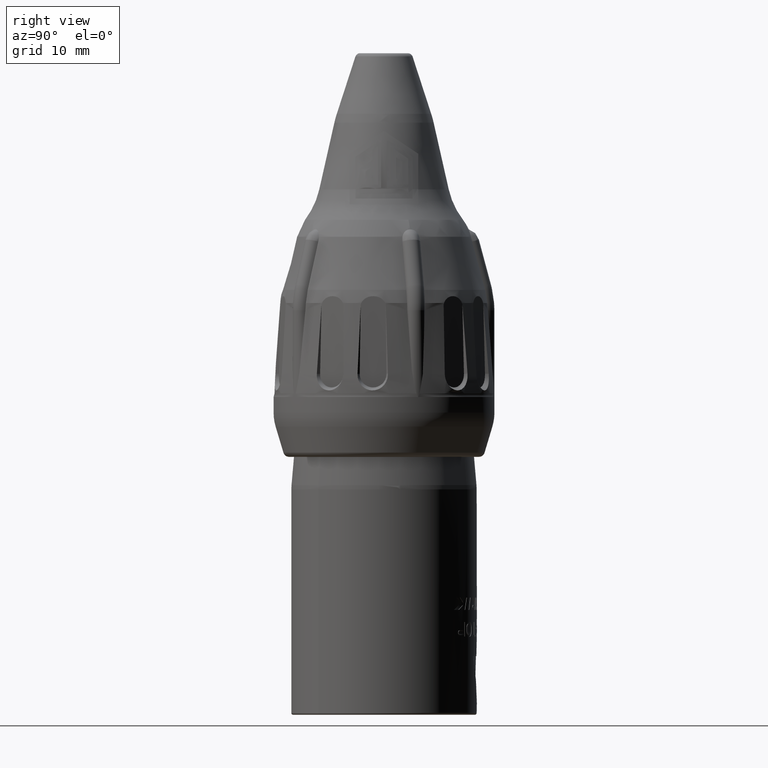
[diagram: clean part render]
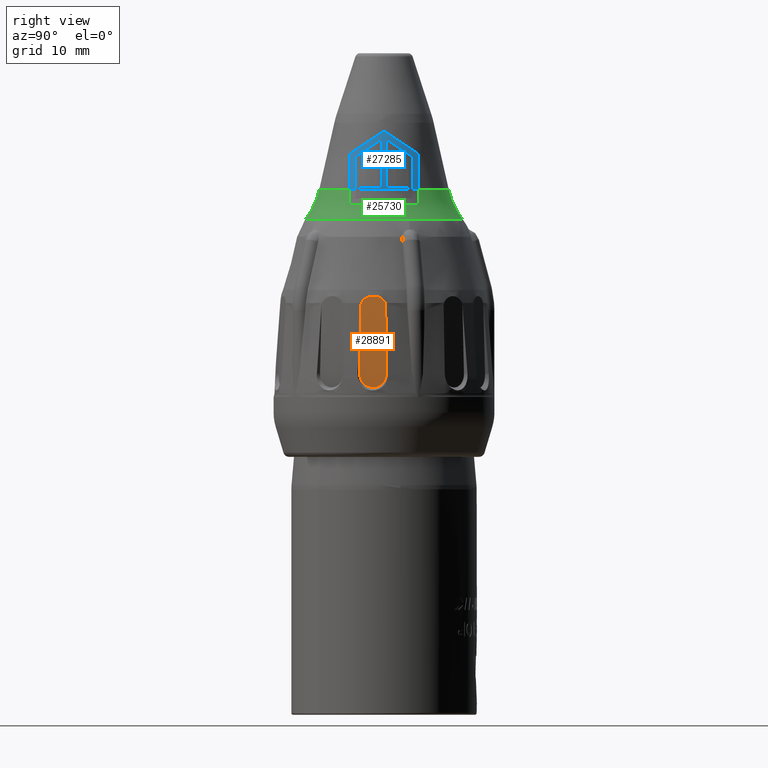
[diagram: same view with three faces highlighted in distinct colors, each labeled with its STEP entity id]
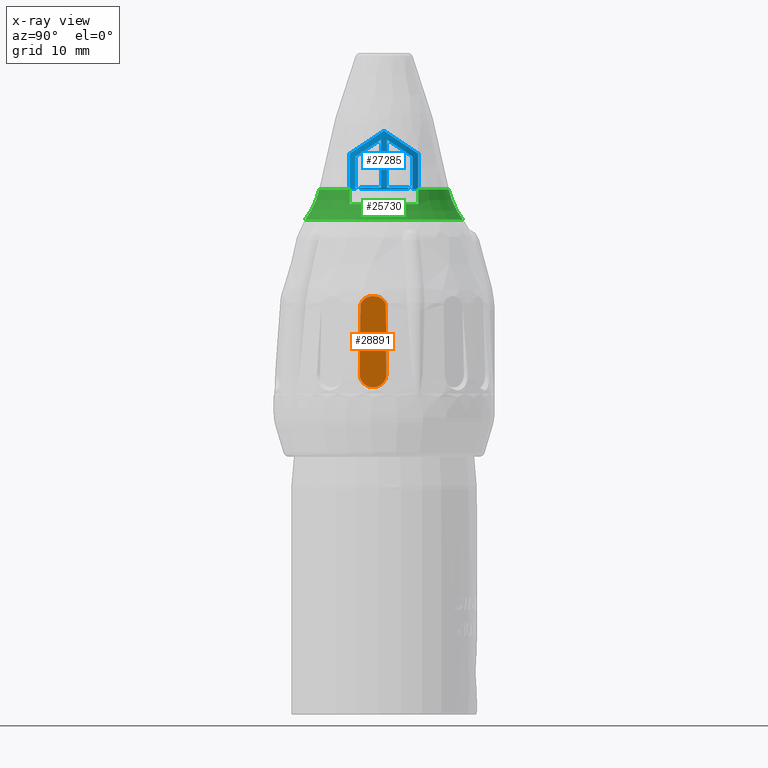
[diagram: x-ray of the same camera — body ghosted, the three highlighted faces saturated]
A machine part, right view with three faces highlighted in distinct colors.
The next image is the same camera in x-ray (body ghosted, the three faces saturated) — at least one of them is partly hidden behind the body in this view.
Their STEP definitions:

[orange] entity #28891 — the highlighted planar face has unit normal (-0.9943, 0.1045, -0.0209).
#6809=CARTESIAN_POINT('',(1.035868448203E1,-2.384952251077E0,1.299690952390E1));
#6810=CARTESIAN_POINT('',(1.035923498853E1,-2.374991287653E0,1.302047915723E1));
#6811=CARTESIAN_POINT('',(1.036035037825E1,-2.355010892870E0,1.306722760874E1));
#6812=CARTESIAN_POINT('',(1.036149541703E1,-2.334905694710E0,1.311319116853E1));
#6813=CARTESIAN_POINT('',(1.036207559087E1,-2.324819783161E0,1.313597576435E1));
#6847=CARTESIAN_POINT('',(1.061899658980E1,1.196202365570E-1,1.313597576435E1));
#6848=CARTESIAN_POINT('',(1.062052615081E1,1.296068792090E-1,1.311319001051E1));
#6849=CARTESIAN_POINT('',(1.062358631541E1,1.495112848124E-1,1.306722528360E1));
#6850=CARTESIAN_POINT('',(1.062664937961E1,1.692864556409E-1,1.302047799067E1));
#6851=CARTESIAN_POINT('',(1.062818182790E1,1.791437169481E-1,1.299690952390E1));
#9455=DIRECTION('',(2.208994578655E-2,9.835077521082E-3,-9.997076100267E-1));
#9456=VECTOR('',#9455,7.104095729760E0);
#9457=CARTESIAN_POINT('',(1.062818182790E1,1.791437169481E-1,1.299690952390E1));
#9458=LINE('',#9457,#9456);
#9459=CARTESIAN_POINT('',(1.078511091743E1,2.490130491675E-1,5.894890960499E0));
#9460=CARTESIAN_POINT('',(1.078871338632E1,2.506169716532E-1,5.731856809378E0));
#9461=CARTESIAN_POINT('',(1.079027744830E1,1.946896659617E-1,5.378513405057E0));
#9462=CARTESIAN_POINT('',(1.076793681089E1,-1.172945027608E-1,
4.882358072111E0));
#9463=CARTESIAN_POINT('',(1.072266964763E1,-6.120777664156E-1,
4.562515385819E0));
#9464=CARTESIAN_POINT('',(1.067099861348E1,-1.121567148791E0,4.473330007022E0));
#9465=CARTESIAN_POINT('',(1.061561171262E1,-1.630665977838E0,4.562515385819E0));
#9466=CARTESIAN_POINT('',(1.055701845482E1,-2.124048612517E0,4.882358072111E0));
#9467=CARTESIAN_POINT('',(1.051400573967E1,-2.433860058317E0,5.378513405057E0));
#9468=CARTESIAN_POINT('',(1.050084791551E1,-2.488240031424E0,5.731856809378E0));
#9469=CARTESIAN_POINT('',(1.049765764345E1,-2.485922163095E0,5.894890960499E0));
#9471=DIRECTION('',(-1.956239987472E-2,1.421291545883E-2,9.997076100267E-1));
#9472=VECTOR('',#9471,7.104095729760E0);
#9473=CARTESIAN_POINT('',(1.049765764345E1,-2.485922163095E0,5.894890960499E0));
#9474=LINE('',#9473,#9472);
#9475=CARTESIAN_POINT('',(1.061899658980E1,1.196202365570E-1,1.313597576435E1));
#9476=CARTESIAN_POINT('',(1.061274101926E1,7.877704872381E-2,1.322916452224E1));
#9477=CARTESIAN_POINT('',(1.059748854314E1,-3.136956411892E-2,
1.340367461223E1));
#9478=CARTESIAN_POINT('',(1.056424240242E1,-3.009877904266E-1,
1.363670238606E1));
#9479=CARTESIAN_POINT('',(1.052255458185E1,-6.649155918288E-1,
1.379990638837E1));
#9480=CARTESIAN_POINT('',(1.047707024134E1,-1.085406882412E0,1.386110194187E1));
#9481=CARTESIAN_POINT('',(1.043436560514E1,-1.502205851173E0,1.380874794202E1));
#9482=CARTESIAN_POINT('',(1.039836174038E1,-1.875432462117E0,1.365568687654E1));
#9483=CARTESIAN_POINT('',(1.037203046054E1,-2.176660416238E0,1.340267416419E1));
#9484=CARTESIAN_POINT('',(1.036440680094E1,-2.284293346470E0,1.322752708081E1));
#9485=CARTESIAN_POINT('',(1.036207559087E1,-2.324819783161E0,1.313597576435E1));
#13195=VERTEX_POINT('',#9459);
#13196=VERTEX_POINT('',#9469);
#13197=CARTESIAN_POINT('',(1.035868448203E1,-2.384952251077E0,
1.299690952390E1));
#13198=VERTEX_POINT('',#13197);
#13199=CARTESIAN_POINT('',(1.062818182790E1,1.791437169481E-1,
1.299690952390E1));
#13200=VERTEX_POINT('',#13199);
#13231=VERTEX_POINT('',#6813);
#13232=VERTEX_POINT('',#6847);
#28875=CARTESIAN_POINT('',(1.038826367641E1,-3.526736234580E0,
5.894890960499E0));
#28876=DIRECTION('',(-9.943037802820E-1,1.045055384483E-1,-2.094241988336E-2));
#28877=DIRECTION('',(-1.045284632677E-1,-9.945218953683E-1,0.E0));
#28878=AXIS2_PLACEMENT_3D('',#28875,#28876,#28877);
#28879=PLANE('',#28878);
#28880=ORIENTED_EDGE('',*,*,#24702,.T.);
#28882=ORIENTED_EDGE('',*,*,#28881,.T.);
#28884=ORIENTED_EDGE('',*,*,#28883,.T.);
#28886=ORIENTED_EDGE('',*,*,#28885,.T.);
#28887=ORIENTED_EDGE('',*,*,#24694,.T.);
#28888=ORIENTED_EDGE('',*,*,#25208,.F.);
#28889=EDGE_LOOP('',(#28880,#28882,#28884,#28886,#28887,#28888));
#28890=FACE_OUTER_BOUND('',#28889,.F.);
#6814=B_SPLINE_CURVE_WITH_KNOTS('',3,(#6809,#6810,#6811,#6812,#6813),
.UNSPECIFIED.,.F.,.F.,(4,1,4),(0.E0,5.E-1,1.E0),.UNSPECIFIED.);
#6852=B_SPLINE_CURVE_WITH_KNOTS('',3,(#6847,#6848,#6849,#6850,#6851),
.UNSPECIFIED.,.F.,.F.,(4,1,4),(0.E0,5.E-1,1.E0),.UNSPECIFIED.);
#9470=B_SPLINE_CURVE_WITH_KNOTS('',3,(#9459,#9460,#9461,#9462,#9463,#9464,#9465,
#9466,#9467,#9468,#9469),.UNSPECIFIED.,.F.,.F.,(4,1,1,1,1,1,1,1,4),(0.E0,
1.25E-1,2.5E-1,3.75E-1,5.E-1,6.25E-1,7.5E-1,8.75E-1,1.E0),.UNSPECIFIED.);
#9486=B_SPLINE_CURVE_WITH_KNOTS('',3,(#9475,#9476,#9477,#9478,#9479,#9480,#9481,
#9482,#9483,#9484,#9485),.UNSPECIFIED.,.F.,.F.,(4,1,1,1,1,1,1,1,4),(0.E0,
1.25E-1,2.5E-1,3.75E-1,5.E-1,6.25E-1,7.5E-1,8.75E-1,1.E0),.UNSPECIFIED.);
#24694=EDGE_CURVE('',#13198,#13231,#6814,.T.);
#24702=EDGE_CURVE('',#13232,#13200,#6852,.T.);
#25208=EDGE_CURVE('',#13232,#13231,#9486,.T.);
#28881=EDGE_CURVE('',#13200,#13195,#9458,.T.);
#28883=EDGE_CURVE('',#13195,#13196,#9470,.T.);
#28885=EDGE_CURVE('',#13196,#13198,#9474,.T.);
#28891=ADVANCED_FACE('',(#28890),#28879,.F.);

[blue] entity #27285 — the highlighted conical surface has half-angle 12.741 deg.
#8777=CARTESIAN_POINT('',(4.805131249588E0,-3.511568690406E0,2.841304441196E1));
#8778=CARTESIAN_POINT('',(4.913172701029E0,-3.511568690406E0,2.802724766920E1));
#8779=CARTESIAN_POINT('',(5.129734373924E0,-3.511568690406E0,2.724490386660E1));
#8780=CARTESIAN_POINT('',(5.456768963148E0,-3.511568690406E0,2.603932182085E1));
#8781=CARTESIAN_POINT('',(5.676643843764E0,-3.511568690406E0,2.521438610970E1));
#8782=CARTESIAN_POINT('',(5.787129197009E0,-3.511568690406E0,2.479663213144E1));
#8784=CARTESIAN_POINT('',(4.805131249588E0,-3.511568690406E0,2.841304441196E1));
#8785=CARTESIAN_POINT('',(5.109630707354E0,-2.951928430523E0,2.878613517358E1));
#8786=CARTESIAN_POINT('',(5.493581783731E0,-1.804295592333E0,2.955121810338E1));
#8787=CARTESIAN_POINT('',(5.514118261425E0,-6.108785046254E-1,
3.034682364161E1));
#8788=CARTESIAN_POINT('',(5.422384295150E0,-1.319364158854E-3,
3.075319341211E1));
#8790=CARTESIAN_POINT('',(5.422384295150E0,-1.319364158854E-3,
3.075319341211E1));
#8791=CARTESIAN_POINT('',(5.514402588634E0,6.081583112293E-1,3.034687798136E1));
#8792=CARTESIAN_POINT('',(5.494459052690E0,1.801496110779E0,2.955132536042E1));
#8793=CARTESIAN_POINT('',(5.111175981595E0,2.949202654588E0,2.878619335058E1));
#8794=CARTESIAN_POINT('',(4.807058319795E0,3.508930222062E0,2.841304441196E1));
#8796=CARTESIAN_POINT('',(5.788729368956E0,3.508930222062E0,2.479663213144E1));
#8797=CARTESIAN_POINT('',(5.678359997942E0,3.508930222062E0,2.521406296152E1));
#8798=CARTESIAN_POINT('',(5.458665830434E0,3.508930222062E0,2.603856846527E1));
#8799=CARTESIAN_POINT('',(5.131739800535E0,3.508930222062E0,2.724416560202E1));
#8800=CARTESIAN_POINT('',(4.915144919283E0,3.508930222062E0,2.802693166736E1));
#8801=CARTESIAN_POINT('',(4.807058319795E0,3.508930222062E0,2.841304441196E1));
#8803=CARTESIAN_POINT('',(0.E0,0.E0,2.479663213144E1));
#8804=DIRECTION('',(0.E0,0.E0,1.E0));
#8805=DIRECTION('',(9.015598071135E-1,4.326544974890E-1,0.E0));
#8806=AXIS2_PLACEMENT_3D('',#8803,#8804,#8805);
#8808=CARTESIAN_POINT('',(6.102832677619E0,2.928721960054E0,2.479663213144E1));
#8809=CARTESIAN_POINT('',(6.007989333742E0,2.928721960054E0,2.517480557503E1));
#8810=CARTESIAN_POINT('',(5.819285822878E0,2.928721960054E0,2.592393541035E1));
#8811=CARTESIAN_POINT('',(5.538959799344E0,2.928721960054E0,2.702597467981E1));
#8812=CARTESIAN_POINT('',(5.353758041709E0,2.928721960054E0,2.774609430111E1));
#8813=CARTESIAN_POINT('',(5.261528227681E0,2.928721960054E0,2.810250639267E1));
#8815=CARTESIAN_POINT('',(5.616361321017E0,2.887847668454E-1,2.986247314279E1));
#8816=CARTESIAN_POINT('',(5.705894285626E0,1.188449643800E0,2.926269362009E1));
#8817=CARTESIAN_POINT('',(5.591825228205E0,2.068827390851E0,2.867577224698E1));
#8818=CARTESIAN_POINT('',(5.261528227681E0,2.928721960054E0,2.810250639267E1));
#8820=CARTESIAN_POINT('',(6.731467862481E0,2.887847668454E-1,2.493609748476E1));
#8821=CARTESIAN_POINT('',(6.606039488454E0,2.887847668454E-1,2.549032251438E1));
#8822=CARTESIAN_POINT('',(6.356202630809E0,2.887847668454E-1,2.659420926840E1));
#8823=CARTESIAN_POINT('',(5.984448812536E0,2.887847668454E-1,2.823657949439E1));
#8824=CARTESIAN_POINT('',(5.738713828343E0,2.887847668454E-1,2.932205595514E1));
#8825=CARTESIAN_POINT('',(5.616361321017E0,2.887847668454E-1,2.986247314279E1));
#8827=CARTESIAN_POINT('',(0.E0,0.E0,2.493609748476E1));
#8828=DIRECTION('',(0.E0,0.E0,1.E0));
#8829=DIRECTION('',(9.990810327426E-1,4.286128805699E-2,0.E0));
#8830=AXIS2_PLACEMENT_3D('',#8827,#8828,#8829);
#8832=CARTESIAN_POINT('',(6.297814139377E0,2.478071061283E0,2.480274265861E1));
#8833=CARTESIAN_POINT('',(6.294210357170E0,2.478071061283E0,2.481757431396E1));
#8834=CARTESIAN_POINT('',(6.287001590851E0,2.478071497707E0,2.484722736607E1));
#8835=CARTESIAN_POINT('',(6.276198106977E0,2.478071319170E0,2.489167939895E1));
#8836=CARTESIAN_POINT('',(6.268997799028E0,2.478071358845E0,2.492129463772E1));
#8837=CARTESIAN_POINT('',(6.265398516109E0,2.478071358845E0,2.493609748476E1));
#8839=CARTESIAN_POINT('',(6.297813045079E0,-2.478071656454E0,2.480274242046E1));
#8840=CARTESIAN_POINT('',(6.504252866152E0,-1.953422018180E0,2.480274242046E1));
#8841=CARTESIAN_POINT('',(6.787133413737E0,-8.527449324778E-1,
2.479459540019E1));
#8842=CARTESIAN_POINT('',(6.787133087292E0,8.527438774391E-1,2.479459525730E1));
#8843=CARTESIAN_POINT('',(6.504253886114E0,1.953421394757E0,2.480274265861E1));
#8844=CARTESIAN_POINT('',(6.297814139377E0,2.478071061283E0,2.480274265861E1));
#8846=CARTESIAN_POINT('',(6.265398516109E0,-2.478071358845E0,2.493609748476E1));
#8847=CARTESIAN_POINT('',(6.268997795767E0,-2.478071358845E0,2.492129465113E1));
#8848=CARTESIAN_POINT('',(6.276197953825E0,-2.478071398526E0,2.489167939689E1));
#8849=CARTESIAN_POINT('',(6.287002088274E0,-2.478071219960E0,2.484722753211E1));
#8850=CARTESIAN_POINT('',(6.294209260877E0,-2.478071656454E0,2.481757408319E1));
#8851=CARTESIAN_POINT('',(6.297813045079E0,-2.478071656454E0,2.480274242046E1));
#8853=CARTESIAN_POINT('',(0.E0,0.E0,2.493609748476E1));
#8854=DIRECTION('',(0.E0,0.E0,1.E0));
#8855=DIRECTION('',(9.299072576587E-1,-3.677940893402E-1,0.E0));
#8856=AXIS2_PLACEMENT_3D('',#8853,#8854,#8855);
#8858=CARTESIAN_POINT('',(5.616225020087E0,-2.914234951629E-1,
2.986247314279E1));
#8859=CARTESIAN_POINT('',(5.738525717357E0,-2.914234951629E-1,
2.932229790388E1));
#8860=CARTESIAN_POINT('',(5.984193272210E0,-2.914234951629E-1,
2.823714397777E1));
#8861=CARTESIAN_POINT('',(6.355955652891E0,-2.914234951629E-1,
2.659476896483E1));
#8862=CARTESIAN_POINT('',(6.605869367373E0,-2.914234951629E-1,
2.549056235763E1));
#8863=CARTESIAN_POINT('',(6.731354141007E0,-2.914234951629E-1,
2.493609748476E1));
#8865=CARTESIAN_POINT('',(5.260058566657E0,-2.931360688371E0,2.810250639267E1));
#8866=CARTESIAN_POINT('',(5.590848372232E0,-2.071546305159E0,2.867571878940E1));
#8867=CARTESIAN_POINT('',(5.705345094591E0,-1.191165461312E0,2.926264222704E1));
#8868=CARTESIAN_POINT('',(5.616225020087E0,-2.914234951629E-1,
2.986247314279E1));
#8870=CARTESIAN_POINT('',(5.260058566657E0,-2.931360688371E0,2.810250639267E1));
#8871=CARTESIAN_POINT('',(5.352260566127E0,-2.931360688371E0,2.774630131120E1));
#8872=CARTESIAN_POINT('',(5.537441138752E0,-2.931360688371E0,2.702645800856E1));
#8873=CARTESIAN_POINT('',(5.817834196220E0,-2.931360688371E0,2.592442557034E1));
#8874=CARTESIAN_POINT('',(6.006649903140E0,-2.931360688371E0,2.517501574494E1));
#8875=CARTESIAN_POINT('',(6.101565661778E0,-2.931360688371E0,2.479663213144E1));
#8877=CARTESIAN_POINT('',(0.E0,0.E0,2.479663213144E1));
#8878=DIRECTION('',(0.E0,0.E0,1.E0));
#8879=DIRECTION('',(8.549215353274E-1,-5.187573309684E-1,0.E0));
#8880=AXIS2_PLACEMENT_3D('',#8877,#8878,#8879);
#13347=VERTEX_POINT('',#8777);
#13348=VERTEX_POINT('',#8782);
#13350=VERTEX_POINT('',#8788);
#13352=VERTEX_POINT('',#8794);
#13354=VERTEX_POINT('',#8796);
#13357=VERTEX_POINT('',#8870);
#13358=VERTEX_POINT('',#8875);
#13361=VERTEX_POINT('',#8808);
#13362=VERTEX_POINT('',#8813);
#13364=VERTEX_POINT('',#8815);
#13366=VERTEX_POINT('',#8820);
#13369=CARTESIAN_POINT('',(6.265398516109E0,2.478071358845E0,2.493609748476E1));
#13370=VERTEX_POINT('',#13369);
#13372=VERTEX_POINT('',#8832);
#13375=VERTEX_POINT('',#8846);
#13376=VERTEX_POINT('',#8851);
#13379=CARTESIAN_POINT('',(6.731354141007E0,-2.914234951629E-1,
2.493609748476E1));
#13380=VERTEX_POINT('',#13379);
#13382=VERTEX_POINT('',#8858);
#27246=CARTESIAN_POINT('',(0.E0,0.E0,2.777441632349E1));
#27247=DIRECTION('',(0.E0,0.E0,-1.E0));
#27248=DIRECTION('',(0.E0,1.E0,0.E0));
#27249=AXIS2_PLACEMENT_3D('',#27246,#27247,#27248);
#27250=CONICAL_SURFACE('',#27249,6.095901167121E0,1.274063614592E1);
#27252=ORIENTED_EDGE('',*,*,#27251,.F.);
#27254=ORIENTED_EDGE('',*,*,#27253,.T.);
#27256=ORIENTED_EDGE('',*,*,#27255,.T.);
#27258=ORIENTED_EDGE('',*,*,#27257,.F.);
#27260=ORIENTED_EDGE('',*,*,#27259,.F.);
#27261=ORIENTED_EDGE('',*,*,#27194,.T.);
#27263=ORIENTED_EDGE('',*,*,#27262,.F.);
#27265=ORIENTED_EDGE('',*,*,#27264,.F.);
#27267=ORIENTED_EDGE('',*,*,#27266,.T.);
#27269=ORIENTED_EDGE('',*,*,#27268,.F.);
#27271=ORIENTED_EDGE('',*,*,#27270,.F.);
#27273=ORIENTED_EDGE('',*,*,#27272,.F.);
#27275=ORIENTED_EDGE('',*,*,#27274,.T.);
#27277=ORIENTED_EDGE('',*,*,#27276,.F.);
#27279=ORIENTED_EDGE('',*,*,#27278,.F.);
#27280=ORIENTED_EDGE('',*,*,#27154,.T.);
#27282=ORIENTED_EDGE('',*,*,#27281,.F.);
#27283=EDGE_LOOP('',(#27252,#27254,#27256,#27258,#27260,#27261,#27263,#27265,
#27267,#27269,#27271,#27273,#27275,#27277,#27279,#27280,#27282));
#27284=FACE_OUTER_BOUND('',#27283,.F.);
#8783=B_SPLINE_CURVE_WITH_KNOTS('',3,(#8777,#8778,#8779,#8780,#8781,#8782),
.UNSPECIFIED.,.F.,.F.,(4,1,1,4),(0.E0,3.333333333333E-1,6.666666666667E-1,1.E0),
.UNSPECIFIED.);
#8789=B_SPLINE_CURVE_WITH_KNOTS('',3,(#8784,#8785,#8786,#8787,#8788),
.UNSPECIFIED.,.F.,.F.,(4,1,4),(0.E0,5.E-1,1.E0),.UNSPECIFIED.);
#8795=B_SPLINE_CURVE_WITH_KNOTS('',3,(#8790,#8791,#8792,#8793,#8794),
.UNSPECIFIED.,.F.,.F.,(4,1,4),(0.E0,5.E-1,1.E0),.UNSPECIFIED.);
#8802=B_SPLINE_CURVE_WITH_KNOTS('',3,(#8796,#8797,#8798,#8799,#8800,#8801),
.UNSPECIFIED.,.F.,.F.,(4,1,1,4),(0.E0,3.333333333333E-1,6.666666666667E-1,1.E0),
.UNSPECIFIED.);
#8807=CIRCLE('',#8806,6.769193379592E0);
#8814=B_SPLINE_CURVE_WITH_KNOTS('',3,(#8808,#8809,#8810,#8811,#8812,#8813),
.UNSPECIFIED.,.F.,.F.,(4,1,1,4),(0.E0,3.333333333333E-1,6.666666666667E-1,1.E0),
.UNSPECIFIED.);
#8819=B_SPLINE_CURVE_WITH_KNOTS('',3,(#8815,#8816,#8817,#8818),.UNSPECIFIED.,
.F.,.F.,(4,4),(0.E0,1.E0),.UNSPECIFIED.);
#8826=B_SPLINE_CURVE_WITH_KNOTS('',3,(#8820,#8821,#8822,#8823,#8824,#8825),
.UNSPECIFIED.,.F.,.F.,(4,1,1,4),(0.E0,3.333333333333E-1,6.666666666667E-1,1.E0),
.UNSPECIFIED.);
#8831=CIRCLE('',#8830,6.737659551E0);
#8838=B_SPLINE_CURVE_WITH_KNOTS('',3,(#8832,#8833,#8834,#8835,#8836,#8837),
.UNSPECIFIED.,.F.,.F.,(4,1,1,4),(0.E0,3.333333333333E-1,6.666666666667E-1,1.E0),
.UNSPECIFIED.);
#8845=B_SPLINE_CURVE_WITH_KNOTS('',3,(#8839,#8840,#8841,#8842,#8843,#8844),
.UNSPECIFIED.,.F.,.F.,(4,1,1,4),(0.E0,3.333333333333E-1,6.666666666667E-1,1.E0),
.UNSPECIFIED.);
#8852=B_SPLINE_CURVE_WITH_KNOTS('',3,(#8846,#8847,#8848,#8849,#8850,#8851),
.UNSPECIFIED.,.F.,.F.,(4,1,1,4),(0.E0,3.333333333333E-1,6.666666666667E-1,1.E0),
.UNSPECIFIED.);
#8857=CIRCLE('',#8856,6.737659551E0);
#8864=B_SPLINE_CURVE_WITH_KNOTS('',3,(#8858,#8859,#8860,#8861,#8862,#8863),
.UNSPECIFIED.,.F.,.F.,(4,1,1,4),(0.E0,3.333333333333E-1,6.666666666667E-1,1.E0),
.UNSPECIFIED.);
#8869=B_SPLINE_CURVE_WITH_KNOTS('',3,(#8865,#8866,#8867,#8868),.UNSPECIFIED.,
.F.,.F.,(4,4),(0.E0,1.E0),.UNSPECIFIED.);
#8876=B_SPLINE_CURVE_WITH_KNOTS('',3,(#8870,#8871,#8872,#8873,#8874,#8875),
.UNSPECIFIED.,.F.,.F.,(4,1,1,4),(0.E0,3.333333333333E-1,6.666666666667E-1,1.E0),
.UNSPECIFIED.);
#8881=CIRCLE('',#8880,6.769193379592E0);
#27154=EDGE_CURVE('',#13357,#13358,#8876,.T.);
#27194=EDGE_CURVE('',#13361,#13362,#8814,.T.);
#27251=EDGE_CURVE('',#13347,#13348,#8783,.T.);
#27253=EDGE_CURVE('',#13347,#13350,#8789,.T.);
#27255=EDGE_CURVE('',#13350,#13352,#8795,.T.);
#27257=EDGE_CURVE('',#13354,#13352,#8802,.T.);
#27259=EDGE_CURVE('',#13361,#13354,#8807,.T.);
#27262=EDGE_CURVE('',#13364,#13362,#8819,.T.);
#27264=EDGE_CURVE('',#13366,#13364,#8826,.T.);
#27266=EDGE_CURVE('',#13366,#13370,#8831,.T.);
#27268=EDGE_CURVE('',#13372,#13370,#8838,.T.);
#27270=EDGE_CURVE('',#13376,#13372,#8845,.T.);
#27272=EDGE_CURVE('',#13375,#13376,#8852,.T.);
#27274=EDGE_CURVE('',#13375,#13380,#8857,.T.);
#27276=EDGE_CURVE('',#13382,#13380,#8864,.T.);
#27278=EDGE_CURVE('',#13357,#13382,#8869,.T.);
#27281=EDGE_CURVE('',#13348,#13358,#8881,.T.);
#27285=ADVANCED_FACE('',(#27284),#27250,.T.);

[green] entity #25730 — the highlighted toroidal blend (fillet) surface has major radius 14.4259 mm and minor (blend) radius 8 mm.
#7601=CARTESIAN_POINT('',(0.E0,0.E0,2.166134880403E1));
#7602=DIRECTION('',(0.E0,0.E0,1.E0));
#7603=DIRECTION('',(7.943912247352E-11,-1.E0,0.E0));
#7604=AXIS2_PLACEMENT_3D('',#7601,#7602,#7603);
#7746=CARTESIAN_POINT('',(0.E0,0.E0,2.325349876691E1));
#7747=DIRECTION('',(0.E0,0.E0,1.E0));
#7748=DIRECTION('',(8.701797015980E-1,-4.927344994282E-1,0.E0));
#7749=AXIS2_PLACEMENT_3D('',#7746,#7747,#7748);
#7751=CARTESIAN_POINT('',(5.616941865481E0,3.508930222062E0,2.476355142667E1));
#7752=CARTESIAN_POINT('',(5.661582945757E0,3.508930222062E0,2.459610459559E1));
#7753=CARTESIAN_POINT('',(5.763996192075E0,3.508930222062E0,2.426082621208E1));
#7754=CARTESIAN_POINT('',(5.958943789147E0,3.508930222062E0,2.375607440225E1));
#7755=CARTESIAN_POINT('',(6.116763088687E0,3.508930222062E0,2.342082027325E1));
#7756=CARTESIAN_POINT('',(6.202998953609E0,3.508930222062E0,2.325349876691E1));
#7758=CARTESIAN_POINT('',(0.E0,1.442591363185E1,2.652785568105E1));
#7759=DIRECTION('',(1.E0,0.E0,0.E0));
#7760=DIRECTION('',(0.E0,-9.753783760834E-1,-2.205380317971E-1));
#7761=AXIS2_PLACEMENT_3D('',#7758,#7759,#7760);
#7763=CARTESIAN_POINT('',(0.E0,0.E0,2.166134880403E1));
#7764=DIRECTION('',(0.E0,0.E0,-1.E0));
#7765=DIRECTION('',(0.E0,1.E0,0.E0));
#7766=AXIS2_PLACEMENT_3D('',#7763,#7764,#7765);
#7768=CARTESIAN_POINT('',(0.E0,-1.442591363185E1,2.652785568105E1));
#7769=DIRECTION('',(-1.E0,0.E0,0.E0));
#7770=DIRECTION('',(0.E0,9.753783760834E-1,-2.205380317971E-1));
#7771=AXIS2_PLACEMENT_3D('',#7768,#7769,#7770);
#7773=CARTESIAN_POINT('',(6.201505676393E0,-3.511568690406E0,2.325349876691E1));
#7774=CARTESIAN_POINT('',(6.115243526614E0,-3.511568690406E0,2.342083098080E1));
#7775=CARTESIAN_POINT('',(5.957378756254E0,-3.511568690406E0,2.375610000348E1));
#7776=CARTESIAN_POINT('',(5.762381177469E0,-3.511568690406E0,2.426085157272E1));
#7777=CARTESIAN_POINT('',(5.659943991608E0,-3.511568690406E0,2.459611561673E1));
#7778=CARTESIAN_POINT('',(5.615292740014E0,-3.511568690406E0,2.476355142667E1));
#8145=CARTESIAN_POINT('',(5.615292740014E0,-3.511568690406E0,2.476355142667E1));
#8147=CARTESIAN_POINT('',(0.E0,0.E0,2.476355142667E1));
#8148=DIRECTION('',(0.E0,0.E0,1.E0));
#8149=DIRECTION('',(0.E0,-1.E0,0.E0));
#8150=AXIS2_PLACEMENT_3D('',#8147,#8148,#8149);
#8165=CARTESIAN_POINT('',(0.E0,0.E0,2.476355142667E1));
#8166=DIRECTION('',(0.E0,0.E0,1.E0));
#8167=DIRECTION('',(8.481108291696E-1,5.298188572006E-1,0.E0));
#8168=AXIS2_PLACEMENT_3D('',#8165,#8166,#8167);
#8170=CARTESIAN_POINT('',(5.616941865481E0,3.508930222062E0,2.476355142667E1));
#13346=VERTEX_POINT('',#8145);
#13353=VERTEX_POINT('',#8170);
#13419=CARTESIAN_POINT('',(0.E0,6.622886623180E0,2.476355142667E1));
#13420=CARTESIAN_POINT('',(0.E0,8.076337991233E0,2.166134880403E1));
#13421=VERTEX_POINT('',#13419);
#13422=VERTEX_POINT('',#13420);
#13423=CARTESIAN_POINT('',(0.E0,-6.622886623180E0,2.476355142667E1));
#13424=CARTESIAN_POINT('',(0.E0,-8.076337991233E0,2.166134880403E1));
#13425=VERTEX_POINT('',#13423);
#13426=VERTEX_POINT('',#13424);
#13439=CARTESIAN_POINT('',(7.680717310562E0,2.496761290926E0,2.166134880403E1));
#13440=VERTEX_POINT('',#13439);
#13465=CARTESIAN_POINT('',(6.201505676393E0,-3.511568690406E0,
2.325349876691E1));
#13466=CARTESIAN_POINT('',(6.202998953609E0,3.508930222062E0,2.325349876691E1));
#13467=VERTEX_POINT('',#13465);
#13468=VERTEX_POINT('',#13466);
#25706=CARTESIAN_POINT('',(0.E0,0.E0,2.652785568105E1));
#25707=DIRECTION('',(0.E0,0.E0,1.E0));
#25708=DIRECTION('',(0.E0,-1.E0,0.E0));
#25709=AXIS2_PLACEMENT_3D('',#25706,#25707,#25708);
#25710=TOROIDAL_SURFACE('',#25709,1.442591363185E1,8.E0);
#25712=ORIENTED_EDGE('',*,*,#25711,.T.);
#25714=ORIENTED_EDGE('',*,*,#25713,.F.);
#25716=ORIENTED_EDGE('',*,*,#25715,.T.);
#25718=ORIENTED_EDGE('',*,*,#25717,.T.);
#25720=ORIENTED_EDGE('',*,*,#25719,.T.);
#25721=ORIENTED_EDGE('',*,*,#25612,.F.);
#25723=ORIENTED_EDGE('',*,*,#25722,.F.);
#25725=ORIENTED_EDGE('',*,*,#25724,.T.);
#25727=ORIENTED_EDGE('',*,*,#25726,.F.);
#25728=EDGE_LOOP('',(#25712,#25714,#25716,#25718,#25720,#25721,#25723,#25725,
#25727));
#25729=FACE_OUTER_BOUND('',#25728,.F.);
#7605=CIRCLE('',#7604,8.076337991233E0);
#7750=CIRCLE('',#7749,7.126695399817E0);
#7757=B_SPLINE_CURVE_WITH_KNOTS('',3,(#7751,#7752,#7753,#7754,#7755,#7756),
.UNSPECIFIED.,.F.,.F.,(4,1,1,4),(0.E0,3.333333333333E-1,6.666666666667E-1,1.E0),
.UNSPECIFIED.);
#7762=CIRCLE('',#7761,8.E0);
#7767=CIRCLE('',#7766,8.076337991233E0);
#7772=CIRCLE('',#7771,8.E0);
#7779=B_SPLINE_CURVE_WITH_KNOTS('',3,(#7773,#7774,#7775,#7776,#7777,#7778),
.UNSPECIFIED.,.F.,.F.,(4,1,1,4),(0.E0,3.333333333333E-1,6.666666666667E-1,1.E0),
.UNSPECIFIED.);
#8151=CIRCLE('',#8150,6.622886623180E0);
#8169=CIRCLE('',#8168,6.622886623180E0);
#25612=EDGE_CURVE('',#13426,#13440,#7605,.T.);
#25711=EDGE_CURVE('',#13467,#13468,#7750,.T.);
#25713=EDGE_CURVE('',#13353,#13468,#7757,.T.);
#25715=EDGE_CURVE('',#13353,#13421,#8169,.T.);
#25717=EDGE_CURVE('',#13421,#13422,#7762,.T.);
#25719=EDGE_CURVE('',#13422,#13440,#7767,.T.);
#25722=EDGE_CURVE('',#13425,#13426,#7772,.T.);
#25724=EDGE_CURVE('',#13425,#13346,#8151,.T.);
#25726=EDGE_CURVE('',#13467,#13346,#7779,.T.);
#25730=ADVANCED_FACE('',(#25729),#25710,.F.);